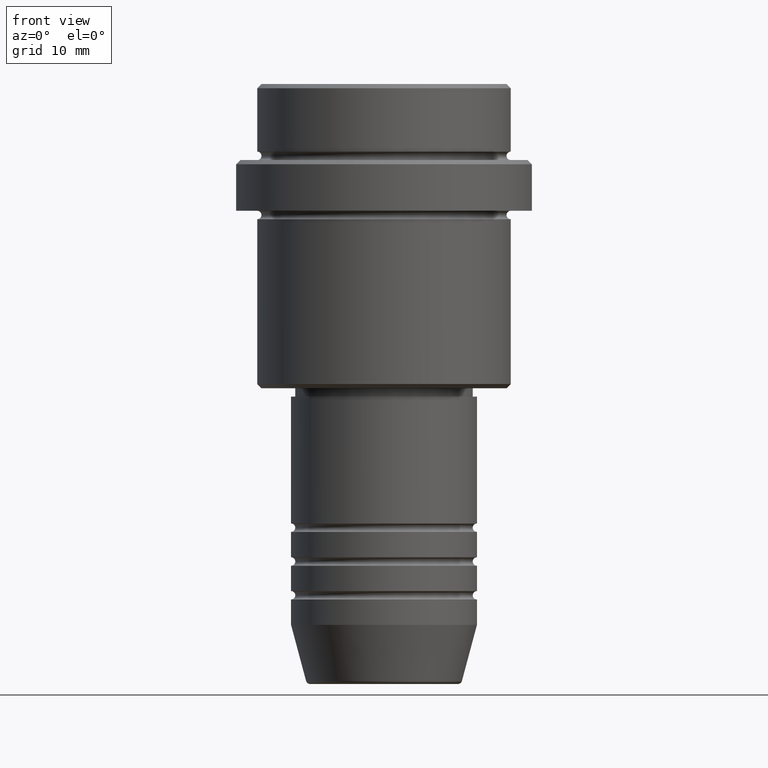
[diagram: clean part render]
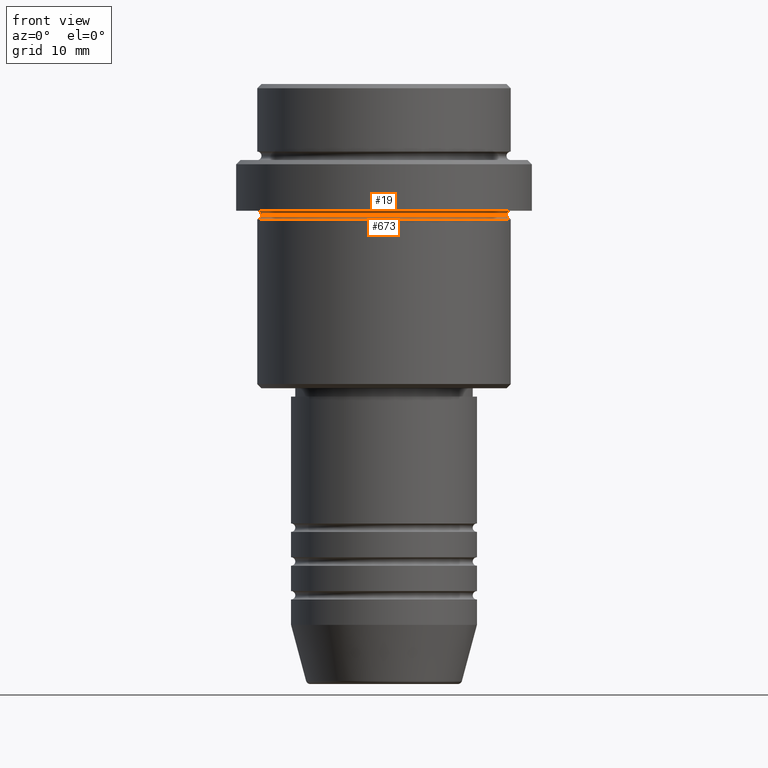
[diagram: same view with one multi-face feature highlighted, each face labeled with its STEP entity id]
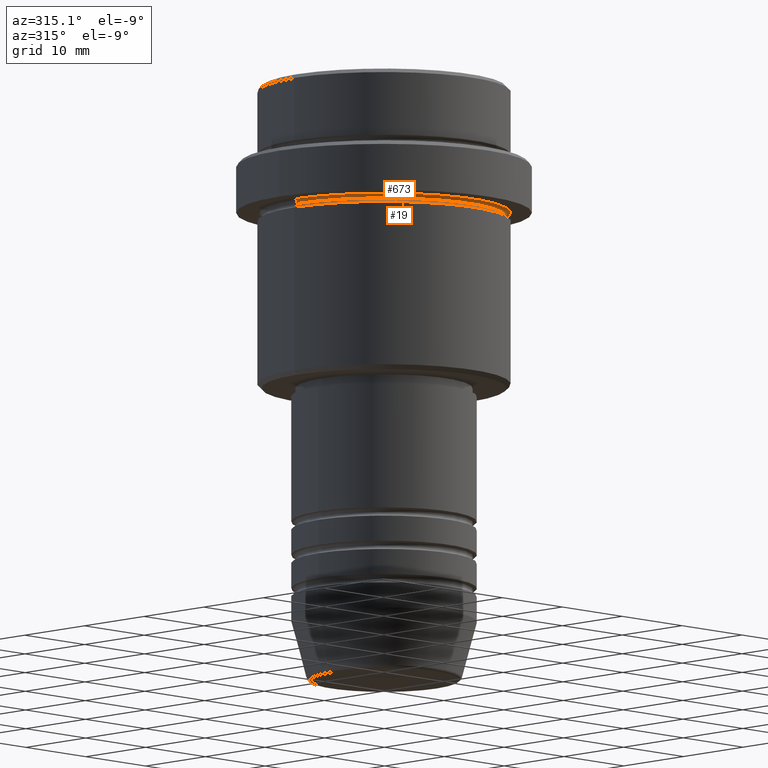
[diagram: same view with one multi-face feature highlighted, each face labeled with its STEP entity id]
A machine part, front view. The highlighted faces form ONE feature: a constant-radius fillet chain: 2 tangent blend faces with common blend radius 0.5 mm. The faces share edges in the B-rep.
A second angle (auxiliary view) of the same feature is appended — it is thin or edge-on in the first view.
Their STEP definitions:
[1] entity #19 (Torus):
#19 = ADVANCED_FACE ( 'NONE', ( #759 ), #1247, .F. ) ;
#34 = EDGE_CURVE ( 'NONE', #795, #341, #65, .T. ) ;
#37 = ORIENTED_EDGE ( 'NONE', *, *, #75, .F. ) ;
#65 = CIRCLE ( 'NONE', #313, 14.49999999999999467 ) ;
#68 = AXIS2_PLACEMENT_3D ( 'NONE', #1293, #658, #113 ) ;
#75 = EDGE_CURVE ( 'NONE', #341, #766, #1044, .T. ) ;
#84 = CARTESIAN_POINT ( 'NONE',  ( 14.99999999999999467, 1.836970198721029194E-15, -15.50000000000000000 ) ) ;
#95 = CARTESIAN_POINT ( 'NONE',  ( 0.000000000000000000, 0.000000000000000000, -15.50000000000000000 ) ) ;
#113 = DIRECTION ( 'NONE',  ( 0.000000000000000000, 0.000000000000000000, -1.000000000000000000 ) ) ;
#128 = VERTEX_POINT ( 'NONE', #897 ) ;
#166 = CARTESIAN_POINT ( 'NONE',  ( 14.49999999999999467, 1.806354028742345013E-15, -15.50000000000000000 ) ) ;
#198 = CARTESIAN_POINT ( 'NONE',  ( 0.000000000000000000, 0.000000000000000000, -15.50000000000000000 ) ) ;
#228 = DIRECTION ( 'NONE',  ( 0.000000000000000000, 0.000000000000000000, -1.000000000000000000 ) ) ;
#251 = EDGE_LOOP ( 'NONE', ( #1224, #1382, #1146, #37 ) ) ;
#313 = AXIS2_PLACEMENT_3D ( 'NONE', #95, #228, #857 ) ;
#341 = VERTEX_POINT ( 'NONE', #1267 ) ;
#385 = EDGE_CURVE ( 'NONE', #766, #128, #1372, .T. ) ;
#427 = CARTESIAN_POINT ( 'NONE',  ( 0.000000000000000000, 0.000000000000000000, -15.00000000000000000 ) ) ;
#439 = DIRECTION ( 'NONE',  ( -1.000000000000000000, 0.000000000000000000, 0.000000000000000000 ) ) ;
#546 = AXIS2_PLACEMENT_3D ( 'NONE', #84, #1145, #1394 ) ;
#658 = DIRECTION ( 'NONE',  ( -0.000000000000000000, -1.000000000000000000, -0.000000000000000000 ) ) ;
#759 = FACE_OUTER_BOUND ( 'NONE', #251, .T. ) ;
#766 = VERTEX_POINT ( 'NONE', #1243 ) ;
#795 = VERTEX_POINT ( 'NONE', #166 ) ;
#820 = AXIS2_PLACEMENT_3D ( 'NONE', #198, #1078, #439 ) ;
#825 = AXIS2_PLACEMENT_3D ( 'NONE', #427, #875, #971 ) ;
#857 = DIRECTION ( 'NONE',  ( -1.000000000000000000, 0.000000000000000000, 0.000000000000000000 ) ) ;
#875 = DIRECTION ( 'NONE',  ( -0.000000000000000000, -0.000000000000000000, 1.000000000000000000 ) ) ;
#897 = CARTESIAN_POINT ( 'NONE',  ( 14.99999999999999467, 1.836970198721029194E-15, -15.00000000000000000 ) ) ;
#971 = DIRECTION ( 'NONE',  ( -1.000000000000000000, 0.000000000000000000, 0.000000000000000000 ) ) ;
#1044 = CIRCLE ( 'NONE', #68, 0.5000000000000004441 ) ;
#1078 = DIRECTION ( 'NONE',  ( 0.000000000000000000, 0.000000000000000000, -1.000000000000000000 ) ) ;
#1139 = CIRCLE ( 'NONE', #546, 0.5000000000000004441 ) ;
#1145 = DIRECTION ( 'NONE',  ( -1.224646799147353207E-16, 1.000000000000000000, 0.000000000000000000 ) ) ;
#1146 = ORIENTED_EDGE ( 'NONE', *, *, #385, .F. ) ;
#1224 = ORIENTED_EDGE ( 'NONE', *, *, #34, .F. ) ;
#1243 = CARTESIAN_POINT ( 'NONE',  ( -14.99999999999999467, 0.000000000000000000, -15.00000000000000000 ) ) ;
#1247 = TOROIDAL_SURFACE ( 'NONE', #820, 14.99999999999999467, 0.5000000000000000000 ) ;
#1267 = CARTESIAN_POINT ( 'NONE',  ( -14.49999999999999467, 0.000000000000000000, -15.50000000000000000 ) ) ;
#1293 = CARTESIAN_POINT ( 'NONE',  ( -14.99999999999999467, 0.000000000000000000, -15.50000000000000000 ) ) ;
#1297 = EDGE_CURVE ( 'NONE', #795, #128, #1139, .T. ) ;
#1372 = CIRCLE ( 'NONE', #825, 14.99999999999999467 ) ;
#1382 = ORIENTED_EDGE ( 'NONE', *, *, #1297, .T. ) ;
#1394 = DIRECTION ( 'NONE',  ( -1.000000000000000000, -1.224646799147349509E-16, 0.000000000000000000 ) ) ;
[2] entity #673 (Torus):
#4 = CIRCLE ( 'NONE', #438, 15.00000000000000178 ) ;
#34 = EDGE_CURVE ( 'NONE', #795, #341, #65, .T. ) ;
#42 = EDGE_CURVE ( 'NONE', #1032, #341, #478, .T. ) ;
#65 = CIRCLE ( 'NONE', #313, 14.49999999999999467 ) ;
#66 = EDGE_LOOP ( 'NONE', ( #640, #234, #1205, #998 ) ) ;
#95 = CARTESIAN_POINT ( 'NONE',  ( 0.000000000000000000, 0.000000000000000000, -15.50000000000000000 ) ) ;
#132 = DIRECTION ( 'NONE',  ( -1.000000000000000000, -1.224646799147349509E-16, 0.000000000000000000 ) ) ;
#166 = CARTESIAN_POINT ( 'NONE',  ( 14.49999999999999467, 1.806354028742345013E-15, -15.50000000000000000 ) ) ;
#228 = DIRECTION ( 'NONE',  ( 0.000000000000000000, 0.000000000000000000, -1.000000000000000000 ) ) ;
#234 = ORIENTED_EDGE ( 'NONE', *, *, #1065, .T. ) ;
#243 = TOROIDAL_SURFACE ( 'NONE', #910, 14.99999999999999467, 0.5000000000000000000 ) ;
#256 = DIRECTION ( 'NONE',  ( 1.000000000000000000, 0.000000000000000000, 0.000000000000000000 ) ) ;
#307 = CARTESIAN_POINT ( 'NONE',  ( 0.000000000000000000, 0.000000000000000000, -15.50000000000000000 ) ) ;
#313 = AXIS2_PLACEMENT_3D ( 'NONE', #95, #228, #857 ) ;
#323 = DIRECTION ( 'NONE',  ( 0.000000000000000000, 0.000000000000000000, -1.000000000000000000 ) ) ;
#341 = VERTEX_POINT ( 'NONE', #1267 ) ;
#438 = AXIS2_PLACEMENT_3D ( 'NONE', #985, #1009, #256 ) ;
#478 = CIRCLE ( 'NONE', #1392, 0.5000000000000004441 ) ;
#537 = FACE_OUTER_BOUND ( 'NONE', #66, .T. ) ;
#577 = CARTESIAN_POINT ( 'NONE',  ( 14.99999999999999467, 1.836970198721029194E-15, -15.50000000000000000 ) ) ;
#638 = AXIS2_PLACEMENT_3D ( 'NONE', #577, #785, #132 ) ;
#640 = ORIENTED_EDGE ( 'NONE', *, *, #815, .T. ) ;
#673 = ADVANCED_FACE ( 'NONE', ( #537 ), #243, .F. ) ;
#745 = DIRECTION ( 'NONE',  ( -1.000000000000000000, 0.000000000000000000, 0.000000000000000000 ) ) ;
#785 = DIRECTION ( 'NONE',  ( -1.224646799147353207E-16, 1.000000000000000000, 0.000000000000000000 ) ) ;
#795 = VERTEX_POINT ( 'NONE', #166 ) ;
#815 = EDGE_CURVE ( 'NONE', #1032, #1156, #4, .T. ) ;
#857 = DIRECTION ( 'NONE',  ( -1.000000000000000000, 0.000000000000000000, 0.000000000000000000 ) ) ;
#910 = AXIS2_PLACEMENT_3D ( 'NONE', #307, #957, #745 ) ;
#915 = CARTESIAN_POINT ( 'NONE',  ( 15.00000000000000178, 0.000000000000000000, -16.00000000000000000 ) ) ;
#933 = CIRCLE ( 'NONE', #638, 0.5000000000000004441 ) ;
#957 = DIRECTION ( 'NONE',  ( 0.000000000000000000, 0.000000000000000000, -1.000000000000000000 ) ) ;
#961 = CARTESIAN_POINT ( 'NONE',  ( -14.99999999999999467, 0.000000000000000000, -15.50000000000000000 ) ) ;
#985 = CARTESIAN_POINT ( 'NONE',  ( 0.000000000000000000, 0.000000000000000000, -16.00000000000000000 ) ) ;
#998 = ORIENTED_EDGE ( 'NONE', *, *, #42, .F. ) ;
#1009 = DIRECTION ( 'NONE',  ( -0.000000000000000000, -0.000000000000000000, 1.000000000000000000 ) ) ;
#1032 = VERTEX_POINT ( 'NONE', #1181 ) ;
#1065 = EDGE_CURVE ( 'NONE', #1156, #795, #933, .T. ) ;
#1156 = VERTEX_POINT ( 'NONE', #915 ) ;
#1181 = CARTESIAN_POINT ( 'NONE',  ( -15.00000000000000355, 1.836970198721029983E-15, -16.00000000000000000 ) ) ;
#1205 = ORIENTED_EDGE ( 'NONE', *, *, #34, .T. ) ;
#1267 = CARTESIAN_POINT ( 'NONE',  ( -14.49999999999999467, 0.000000000000000000, -15.50000000000000000 ) ) ;
#1301 = DIRECTION ( 'NONE',  ( -0.000000000000000000, -1.000000000000000000, -0.000000000000000000 ) ) ;
#1392 = AXIS2_PLACEMENT_3D ( 'NONE', #961, #1301, #323 ) ;